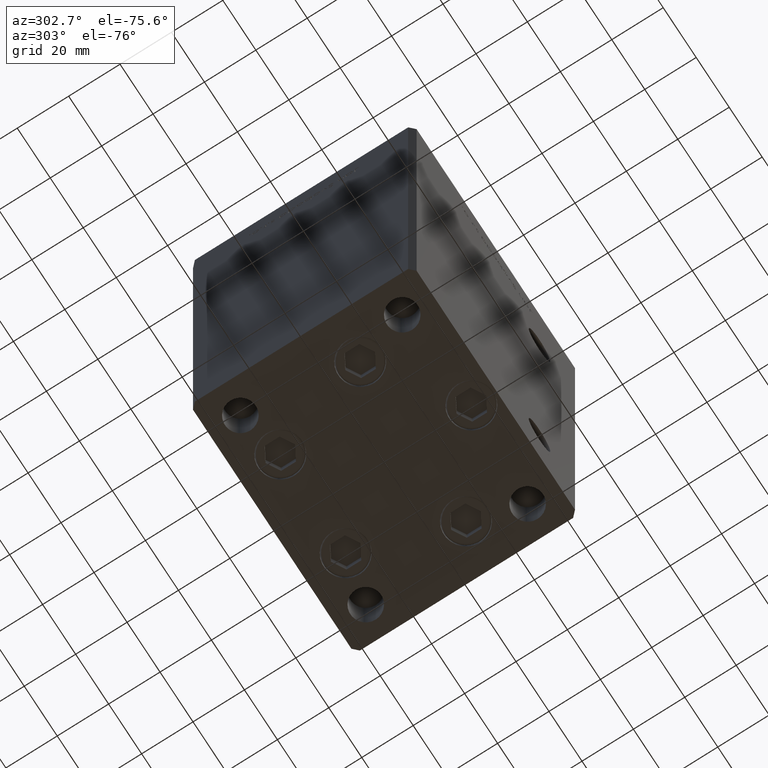
[diagram: clean part render]
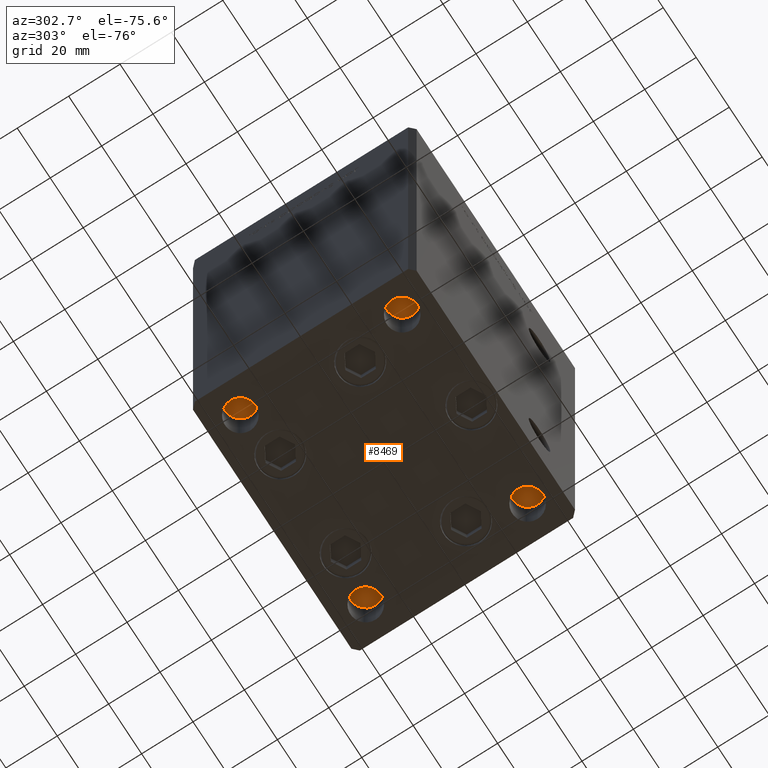
[diagram: same view with one face highlighted and labeled with its STEP entity id]
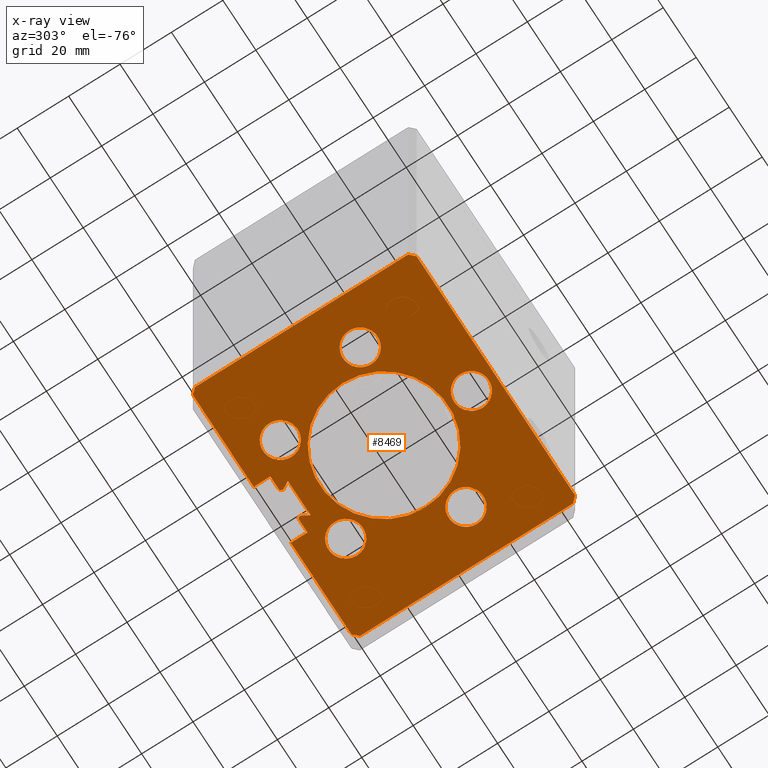
[diagram: x-ray of the same camera — body ghosted, the highlighted face saturated]
A machine part, auxiliary view. The second image highlights one B-rep face of the part: STEP entity #8469.
The next image is the same camera in x-ray: the body ghosted, the highlighted face saturated — about 0% of this face is hidden behind the body in this view.
In plain terms, the highlighted planar face has unit normal (0, 0, -1).
Its self-contained STEP definition (entity closure, byte-faithful):
#275 = LINE ( 'NONE', #8955, #40800 ) ;
#490 = VERTEX_POINT ( 'NONE', #632 ) ;
#537 = DIRECTION ( 'NONE',  ( -1.000000000000000000, 0.000000000000000000, -0.000000000000000000 ) ) ;
#559 = CARTESIAN_POINT ( 'NONE',  ( -11.24999999999999822, 43.50000000000000000, 0.000000000000000000 ) ) ;
#612 = DIRECTION ( 'NONE',  ( -3.344045254895050973E-16, -1.000000000000000000, 0.000000000000000000 ) ) ;
#632 = CARTESIAN_POINT ( 'NONE',  ( -49.99999999999998579, -41.49999999999999289, 0.000000000000000000 ) ) ;
#883 = ORIENTED_EDGE ( 'NONE', *, *, #48804, .F. ) ;
#1217 = AXIS2_PLACEMENT_3D ( 'NONE', #48082, #3254, #11672 ) ;
#1326 = FACE_BOUND ( 'NONE', #14471, .T. ) ;
#1460 = CARTESIAN_POINT ( 'NONE',  ( 5.375042956467945388, 35.59999999999898534, 0.000000000000000000 ) ) ;
#1696 = AXIS2_PLACEMENT_3D ( 'NONE', #21092, #21617, #537 ) ;
#1720 = CARTESIAN_POINT ( 'NONE',  ( -6.183333333333997928, 36.06666666666598786, 0.000000000000000000 ) ) ;
#2004 = DIRECTION ( 'NONE',  ( -0.7071067811865487940, -0.7071067811865463515, 0.000000000000000000 ) ) ;
#2518 = CARTESIAN_POINT ( 'NONE',  ( 6.183333333333997928, 36.99999999999999289, 0.000000000000000000 ) ) ;
#2646 = CIRCLE ( 'NONE', #29547, 6.749999999999999112 ) ;
#2679 = VECTOR ( 'NONE', #24592, 1000.000000000000000 ) ;
#2705 = DIRECTION ( 'NONE',  ( -0.000000000000000000, -0.000000000000000000, -1.000000000000000000 ) ) ;
#3183 = VERTEX_POINT ( 'NONE', #50435 ) ;
#3254 = DIRECTION ( 'NONE',  ( 0.000000000000000000, 0.000000000000000000, -1.000000000000000000 ) ) ;
#3286 = DIRECTION ( 'NONE',  ( -1.000000000000000000, 0.000000000000000000, 0.000000000000000000 ) ) ;
#3294 = DIRECTION ( 'NONE',  ( -1.000000000000000000, 0.000000000000000000, 0.000000000000000000 ) ) ;
#3652 = AXIS2_PLACEMENT_3D ( 'NONE', #41524, #42040, #18287 ) ;
#3850 = CARTESIAN_POINT ( 'NONE',  ( 50.00000000000001421, 41.49999999999999289, 0.000000000000000000 ) ) ;
#3876 = ORIENTED_EDGE ( 'NONE', *, *, #43328, .F. ) ;
#4078 = EDGE_CURVE ( 'NONE', #10994, #51083, #26001, .T. ) ;
#4116 = EDGE_LOOP ( 'NONE', ( #5203, #8835 ) ) ;
#4276 = VECTOR ( 'NONE', #31490, 1000.000000000000000 ) ;
#4295 = DIRECTION ( 'NONE',  ( -0.7071067811865474617, -0.7071067811865474617, 0.000000000000000000 ) ) ;
#4494 = DIRECTION ( 'NONE',  ( 0.000000000000000000, 0.000000000000000000, -1.000000000000000000 ) ) ;
#4589 = AXIS2_PLACEMENT_3D ( 'NONE', #21091, #20824, #32702 ) ;
#5014 = FACE_BOUND ( 'NONE', #9566, .T. ) ;
#5138 = VERTEX_POINT ( 'NONE', #21946 ) ;
#5203 = ORIENTED_EDGE ( 'NONE', *, *, #33864, .F. ) ;
#5475 = ORIENTED_EDGE ( 'NONE', *, *, #37705, .T. ) ;
#5491 = DIRECTION ( 'NONE',  ( -1.000000000000000000, 0.000000000000000000, 0.000000000000000000 ) ) ;
#5527 = CARTESIAN_POINT ( 'NONE',  ( 25.30550741379015989, -11.33333333333332682, 0.000000000000000000 ) ) ;
#5901 = EDGE_CURVE ( 'NONE', #23056, #15321, #39862, .T. ) ;
#6034 = DIRECTION ( 'NONE',  ( -0.000000000000000000, -0.000000000000000000, -1.000000000000000000 ) ) ;
#6774 = ORIENTED_EDGE ( 'NONE', *, *, #4078, .T. ) ;
#7007 = ORIENTED_EDGE ( 'NONE', *, *, #5901, .T. ) ;
#7162 = DIRECTION ( 'NONE',  ( 1.000000000000000000, 0.000000000000000000, 0.000000000000000000 ) ) ;
#7474 = AXIS2_PLACEMENT_3D ( 'NONE', #1720, #17782, #49984 ) ;
#7528 = VERTEX_POINT ( 'NONE', #43525 ) ;
#7567 = DIRECTION ( 'NONE',  ( 3.344045254895050973E-16, -1.000000000000000000, 0.000000000000000000 ) ) ;
#7683 = VERTEX_POINT ( 'NONE', #21351 ) ;
#7712 = CIRCLE ( 'NONE', #28752, 25.00000000000000000 ) ;
#7803 = CARTESIAN_POINT ( 'NONE',  ( -6.876153656360465050, 32.99999999999986500, 0.000000000000000000 ) ) ;
#7989 = CARTESIAN_POINT ( 'NONE',  ( 49.99999999999998579, -41.49999999999999289, 0.000000000000000000 ) ) ;
#8068 = EDGE_CURVE ( 'NONE', #35827, #51162, #36724, .T. ) ;
#8469 = ADVANCED_FACE ( 'NONE', ( #32966, #1326, #33486, #49589, #5014, #8697, #29518 ), #16616, .T. ) ;
#8697 = FACE_OUTER_BOUND ( 'NONE', #29122, .T. ) ;
#8828 = EDGE_CURVE ( 'NONE', #7528, #35827, #14927, .T. ) ;
#8834 = AXIS2_PLACEMENT_3D ( 'NONE', #12400, #4494, #28484 ) ;
#8835 = ORIENTED_EDGE ( 'NONE', *, *, #17928, .F. ) ;
#8945 = CARTESIAN_POINT ( 'NONE',  ( -50.00000000000001421, 41.49999999999999289, 0.000000000000000000 ) ) ;
#8955 = CARTESIAN_POINT ( 'NONE',  ( 6.876153656360465050, 32.99999999999986500, 0.000000000000000000 ) ) ;
#9149 = DIRECTION ( 'NONE',  ( -1.000000000000000000, 0.000000000000000000, 0.000000000000000000 ) ) ;
#9566 = EDGE_LOOP ( 'NONE', ( #883, #40571 ) ) ;
#9664 = CARTESIAN_POINT ( 'NONE',  ( 19.82068048781373548, 27.62500000000000711, 0.000000000000000000 ) ) ;
#9693 = ORIENTED_EDGE ( 'NONE', *, *, #51969, .T. ) ;
#9727 = DIRECTION ( 'NONE',  ( 0.000000000000000000, 0.000000000000000000, -1.000000000000000000 ) ) ;
#9819 = VERTEX_POINT ( 'NONE', #21765 ) ;
#9994 = CIRCLE ( 'NONE', #25995, 6.749999999999999112 ) ;
#10415 = CARTESIAN_POINT ( 'NONE',  ( 19.82068048781373548, 27.62500000000000711, 0.000000000000000000 ) ) ;
#10704 = AXIS2_PLACEMENT_3D ( 'NONE', #26084, #9727, #37696 ) ;
#10994 = VERTEX_POINT ( 'NONE', #42486 ) ;
#11055 = AXIS2_PLACEMENT_3D ( 'NONE', #10415, #35724, #3286 ) ;
#11421 = DIRECTION ( 'NONE',  ( 1.000000000000000000, 0.000000000000000000, 0.000000000000000000 ) ) ;
#11546 = CARTESIAN_POINT ( 'NONE',  ( -25.00000000000000000, 0.000000000000000000, 0.000000000000000000 ) ) ;
#11672 = DIRECTION ( 'NONE',  ( -1.000000000000000000, 0.000000000000000000, 0.000000000000000000 ) ) ;
#12019 = DIRECTION ( 'NONE',  ( -0.4999999999999996114, -0.8660254037844388186, -0.000000000000000000 ) ) ;
#12400 = CARTESIAN_POINT ( 'NONE',  ( 32.05550741379015989, -11.33333333333332682, 0.000000000000000000 ) ) ;
#12419 = LINE ( 'NONE', #559, #43843 ) ;
#12460 = LINE ( 'NONE', #33748, #2679 ) ;
#12472 = VERTEX_POINT ( 'NONE', #42107 ) ;
#12578 = ORIENTED_EDGE ( 'NONE', *, *, #41085, .T. ) ;
#12741 = VECTOR ( 'NONE', #2004, 1000.000000000000000 ) ;
#13104 = DIRECTION ( 'NONE',  ( 0.000000000000000000, 0.000000000000000000, -1.000000000000000000 ) ) ;
#13175 = VERTEX_POINT ( 'NONE', #50161 ) ;
#13349 = VECTOR ( 'NONE', #25942, 1000.000000000000000 ) ;
#13423 = CIRCLE ( 'NONE', #42900, 0.9333333333340008142 ) ;
#13481 = EDGE_CURVE ( 'NONE', #26098, #10994, #19644, .T. ) ;
#13583 = VERTEX_POINT ( 'NONE', #37301 ) ;
#13678 = EDGE_CURVE ( 'NONE', #49149, #47572, #30611, .T. ) ;
#13853 = LINE ( 'NONE', #34423, #12741 ) ;
#14471 = EDGE_LOOP ( 'NONE', ( #34729, #44459 ) ) ;
#14542 = EDGE_CURVE ( 'NONE', #5138, #48732, #50846, .T. ) ;
#14927 = LINE ( 'NONE', #3850, #48579 ) ;
#15144 = CARTESIAN_POINT ( 'NONE',  ( -11.24999999999999822, 43.50000000000000000, 0.000000000000000000 ) ) ;
#15203 = CARTESIAN_POINT ( 'NONE',  ( -50.00000000000001421, 41.49999999999999289, 0.000000000000000000 ) ) ;
#15321 = VERTEX_POINT ( 'NONE', #52188 ) ;
#15486 = CARTESIAN_POINT ( 'NONE',  ( -47.99999999999998579, -43.50000000000000000, 0.000000000000000000 ) ) ;
#16216 = CARTESIAN_POINT ( 'NONE',  ( -48.00000000000000711, 43.50000000000000000, 0.000000000000000000 ) ) ;
#16335 = CARTESIAN_POINT ( 'NONE',  ( -13.07068048781374081, 27.62500000000000355, 0.000000000000000000 ) ) ;
#16616 = PLANE ( 'NONE',  #1696 ) ;
#16640 = DIRECTION ( 'NONE',  ( -1.000000000000000000, 0.000000000000000000, 0.000000000000000000 ) ) ;
#16855 = VECTOR ( 'NONE', #4295, 1000.000000000000114 ) ;
#16936 = EDGE_CURVE ( 'NONE', #38379, #13583, #36583, .T. ) ;
#17019 = CARTESIAN_POINT ( 'NONE',  ( -32.05550741379015989, -11.33333333333333570, 0.000000000000000000 ) ) ;
#17066 = DIRECTION ( 'NONE',  ( 1.000000000000000000, 0.000000000000000000, 0.000000000000000000 ) ) ;
#17416 = EDGE_CURVE ( 'NONE', #39919, #7683, #43321, .T. ) ;
#17450 = EDGE_CURVE ( 'NONE', #18822, #30955, #275, .T. ) ;
#17782 = DIRECTION ( 'NONE',  ( -0.000000000000000000, -0.000000000000000000, -1.000000000000000000 ) ) ;
#17794 = DIRECTION ( 'NONE',  ( 0.000000000000000000, 0.000000000000000000, -1.000000000000000000 ) ) ;
#17928 = EDGE_CURVE ( 'NONE', #31197, #46286, #48419, .T. ) ;
#17953 = AXIS2_PLACEMENT_3D ( 'NONE', #9664, #13104, #9149 ) ;
#18150 = CARTESIAN_POINT ( 'NONE',  ( 6.183333333333997928, 36.06666666666598786, 0.000000000000000000 ) ) ;
#18287 = DIRECTION ( 'NONE',  ( 1.000000000000000000, 0.000000000000000000, 0.000000000000000000 ) ) ;
#18317 = VERTEX_POINT ( 'NONE', #16216 ) ;
#18323 = VECTOR ( 'NONE', #39099, 1000.000000000000114 ) ;
#18822 = VERTEX_POINT ( 'NONE', #24717 ) ;
#19126 = VECTOR ( 'NONE', #7567, 1000.000000000000000 ) ;
#19335 = CARTESIAN_POINT ( 'NONE',  ( -47.99999999999998579, -43.50000000000000000, 0.000000000000000000 ) ) ;
#19467 = ORIENTED_EDGE ( 'NONE', *, *, #29684, .F. ) ;
#19558 = LINE ( 'NONE', #52014, #18323 ) ;
#19644 = LINE ( 'NONE', #35221, #50928 ) ;
#19857 = LINE ( 'NONE', #19335, #24577 ) ;
#20190 = VECTOR ( 'NONE', #39606, 1000.000000000000000 ) ;
#20440 = EDGE_CURVE ( 'NONE', #51083, #12472, #47652, .T. ) ;
#20569 = ORIENTED_EDGE ( 'NONE', *, *, #47776, .F. ) ;
#20683 = CARTESIAN_POINT ( 'NONE',  ( 48.00000000000000711, 43.50000000000000000, 0.000000000000000000 ) ) ;
#20707 = ORIENTED_EDGE ( 'NONE', *, *, #34571, .T. ) ;
#20824 = DIRECTION ( 'NONE',  ( 0.000000000000000000, 0.000000000000000000, -1.000000000000000000 ) ) ;
#21091 = CARTESIAN_POINT ( 'NONE',  ( 4.163799117101000559E-15, -34.00000000000000000, 0.000000000000000000 ) ) ;
#21092 = CARTESIAN_POINT ( 'NONE',  ( 0.000000000000000000, 0.000000000000000000, 0.000000000000000000 ) ) ;
#21265 = AXIS2_PLACEMENT_3D ( 'NONE', #17019, #17794, #37325 ) ;
#21351 = CARTESIAN_POINT ( 'NONE',  ( -6.749999999999994671, -34.00000000000000000, 0.000000000000000000 ) ) ;
#21617 = DIRECTION ( 'NONE',  ( 0.000000000000000000, 0.000000000000000000, -1.000000000000000000 ) ) ;
#21765 = CARTESIAN_POINT ( 'NONE',  ( -11.24999999999999822, 43.50000000000000000, 0.000000000000000000 ) ) ;
#21946 = CARTESIAN_POINT ( 'NONE',  ( 26.57068048781373193, 27.62500000000000711, 0.000000000000000000 ) ) ;
#21958 = LINE ( 'NONE', #49933, #36955 ) ;
#22025 = CARTESIAN_POINT ( 'NONE',  ( 6.750000000000003553, -34.00000000000000000, 0.000000000000000000 ) ) ;
#22252 = LINE ( 'NONE', #42809, #13349 ) ;
#22414 = ORIENTED_EDGE ( 'NONE', *, *, #17450, .T. ) ;
#22473 = DIRECTION ( 'NONE',  ( -0.000000000000000000, -1.000000000000000000, -0.000000000000000000 ) ) ;
#23056 = VERTEX_POINT ( 'NONE', #44552 ) ;
#23307 = ORIENTED_EDGE ( 'NONE', *, *, #46575, .T. ) ;
#23572 = ORIENTED_EDGE ( 'NONE', *, *, #8828, .T. ) ;
#23709 = CIRCLE ( 'NONE', #11055, 6.749999999999999112 ) ;
#23791 = CIRCLE ( 'NONE', #21265, 6.749999999999999112 ) ;
#24489 = CARTESIAN_POINT ( 'NONE',  ( 49.99999999999998579, -41.49999999999999289, 0.000000000000000000 ) ) ;
#24577 = VECTOR ( 'NONE', #11421, 1000.000000000000000 ) ;
#24592 = DIRECTION ( 'NONE',  ( 0.7071067811865487940, -0.7071067811865463515, 0.000000000000000000 ) ) ;
#24717 = CARTESIAN_POINT ( 'NONE',  ( 6.876153656360465050, 32.99999999999986500, 0.000000000000000000 ) ) ;
#25308 = EDGE_CURVE ( 'NONE', #490, #33560, #19558, .T. ) ;
#25527 = DIRECTION ( 'NONE',  ( 0.000000000000000000, 0.000000000000000000, -1.000000000000000000 ) ) ;
#25557 = EDGE_CURVE ( 'NONE', #29549, #490, #28376, .T. ) ;
#25885 = CIRCLE ( 'NONE', #10704, 6.749999999999999112 ) ;
#25942 = DIRECTION ( 'NONE',  ( 1.000000000000000000, -0.000000000000000000, -0.000000000000000000 ) ) ;
#25995 = AXIS2_PLACEMENT_3D ( 'NONE', #30478, #35217, #46585 ) ;
#26001 = CIRCLE ( 'NONE', #7474, 0.9333333333340008142 ) ;
#26084 = CARTESIAN_POINT ( 'NONE',  ( -19.82068048781374259, 27.62500000000000355, 0.000000000000000000 ) ) ;
#26098 = VERTEX_POINT ( 'NONE', #48584 ) ;
#26730 = ORIENTED_EDGE ( 'NONE', *, *, #20440, .T. ) ;
#27014 = LINE ( 'NONE', #2518, #4276 ) ;
#27973 = CARTESIAN_POINT ( 'NONE',  ( 11.24999999999999822, 36.99999999999999289, 0.000000000000000000 ) ) ;
#28376 = LINE ( 'NONE', #15203, #19126 ) ;
#28484 = DIRECTION ( 'NONE',  ( -1.000000000000000000, 0.000000000000000000, 0.000000000000000000 ) ) ;
#28752 = AXIS2_PLACEMENT_3D ( 'NONE', #48738, #29187, #17066 ) ;
#29006 = VERTEX_POINT ( 'NONE', #20683 ) ;
#29064 = EDGE_CURVE ( 'NONE', #30428, #18822, #22252, .T. ) ;
#29085 = AXIS2_PLACEMENT_3D ( 'NONE', #38055, #2705, #7162 ) ;
#29122 = EDGE_LOOP ( 'NONE', ( #20707, #38626, #6774, #26730, #29870, #47187, #22414, #5475, #12578, #7007, #3876, #9693, #23572, #42663, #20569, #48733, #32258, #46682, #40185 ) ) ;
#29187 = DIRECTION ( 'NONE',  ( -0.000000000000000000, 0.000000000000000000, 1.000000000000000000 ) ) ;
#29518 = FACE_BOUND ( 'NONE', #38317, .T. ) ;
#29547 = AXIS2_PLACEMENT_3D ( 'NONE', #37144, #25527, #5491 ) ;
#29549 = VERTEX_POINT ( 'NONE', #8945 ) ;
#29684 = EDGE_CURVE ( 'NONE', #3183, #33291, #25885, .T. ) ;
#29870 = ORIENTED_EDGE ( 'NONE', *, *, #48704, .T. ) ;
#30120 = CARTESIAN_POINT ( 'NONE',  ( 38.80550741379015989, -11.33333333333332682, 0.000000000000000000 ) ) ;
#30428 = VERTEX_POINT ( 'NONE', #39783 ) ;
#30478 = CARTESIAN_POINT ( 'NONE',  ( 32.05550741379015989, -11.33333333333332682, 0.000000000000000000 ) ) ;
#30611 = CIRCLE ( 'NONE', #3652, 25.00000000000000000 ) ;
#30955 = VERTEX_POINT ( 'NONE', #1460 ) ;
#31197 = VERTEX_POINT ( 'NONE', #30120 ) ;
#31324 = ORIENTED_EDGE ( 'NONE', *, *, #17416, .F. ) ;
#31490 = DIRECTION ( 'NONE',  ( 1.000000000000000000, 0.000000000000000000, 0.000000000000000000 ) ) ;
#31514 = DIRECTION ( 'NONE',  ( 1.000000000000000000, -0.000000000000000000, -0.000000000000000000 ) ) ;
#31855 = ORIENTED_EDGE ( 'NONE', *, *, #44757, .F. ) ;
#32258 = ORIENTED_EDGE ( 'NONE', *, *, #25557, .F. ) ;
#32702 = DIRECTION ( 'NONE',  ( -1.000000000000000000, 0.000000000000000000, 0.000000000000000000 ) ) ;
#32966 = FACE_BOUND ( 'NONE', #45185, .T. ) ;
#33291 = VERTEX_POINT ( 'NONE', #16335 ) ;
#33486 = FACE_BOUND ( 'NONE', #4116, .T. ) ;
#33560 = VERTEX_POINT ( 'NONE', #15486 ) ;
#33748 = CARTESIAN_POINT ( 'NONE',  ( 48.00000000000000711, 43.50000000000000000, 0.000000000000000000 ) ) ;
#33864 = EDGE_CURVE ( 'NONE', #46286, #31197, #9994, .T. ) ;
#34423 = CARTESIAN_POINT ( 'NONE',  ( -48.00000000000000711, 43.50000000000000000, 0.000000000000000000 ) ) ;
#34571 = EDGE_CURVE ( 'NONE', #9819, #26098, #21958, .T. ) ;
#34729 = ORIENTED_EDGE ( 'NONE', *, *, #49956, .F. ) ;
#35217 = DIRECTION ( 'NONE',  ( 0.000000000000000000, 0.000000000000000000, -1.000000000000000000 ) ) ;
#35221 = CARTESIAN_POINT ( 'NONE',  ( -6.183333333333997928, 36.99999999999999289, 0.000000000000000000 ) ) ;
#35546 = VECTOR ( 'NONE', #12019, 1000.000000000000114 ) ;
#35724 = DIRECTION ( 'NONE',  ( 0.000000000000000000, 0.000000000000000000, -1.000000000000000000 ) ) ;
#35827 = VERTEX_POINT ( 'NONE', #24489 ) ;
#36489 = CARTESIAN_POINT ( 'NONE',  ( 25.00000000000000000, 3.061616997868383043E-15, 0.000000000000000000 ) ) ;
#36548 = CARTESIAN_POINT ( 'NONE',  ( 13.07068048781373548, 27.62500000000000711, 0.000000000000000000 ) ) ;
#36583 = CIRCLE ( 'NONE', #1217, 6.749999999999999112 ) ;
#36724 = LINE ( 'NONE', #7989, #16855 ) ;
#36955 = VECTOR ( 'NONE', #22473, 1000.000000000000000 ) ;
#37144 = CARTESIAN_POINT ( 'NONE',  ( 4.163799117101000559E-15, -34.00000000000000000, 0.000000000000000000 ) ) ;
#37301 = CARTESIAN_POINT ( 'NONE',  ( -38.80550741379015989, -11.33333333333333570, 0.000000000000000000 ) ) ;
#37325 = DIRECTION ( 'NONE',  ( -1.000000000000000000, 0.000000000000000000, 0.000000000000000000 ) ) ;
#37696 = DIRECTION ( 'NONE',  ( -1.000000000000000000, 0.000000000000000000, 0.000000000000000000 ) ) ;
#37705 = EDGE_CURVE ( 'NONE', #30955, #13175, #13423, .T. ) ;
#38055 = CARTESIAN_POINT ( 'NONE',  ( -6.183333333333997928, 36.06666666666598786, 0.000000000000000000 ) ) ;
#38317 = EDGE_LOOP ( 'NONE', ( #23307, #49535 ) ) ;
#38379 = VERTEX_POINT ( 'NONE', #49051 ) ;
#38626 = ORIENTED_EDGE ( 'NONE', *, *, #13481, .T. ) ;
#39099 = DIRECTION ( 'NONE',  ( 0.7071067811865474617, -0.7071067811865474617, 0.000000000000000000 ) ) ;
#39550 = ORIENTED_EDGE ( 'NONE', *, *, #42918, .F. ) ;
#39606 = DIRECTION ( 'NONE',  ( 0.000000000000000000, 1.000000000000000000, 0.000000000000000000 ) ) ;
#39783 = CARTESIAN_POINT ( 'NONE',  ( -6.876153656360465050, 32.99999999999986500, 0.000000000000000000 ) ) ;
#39862 = LINE ( 'NONE', #27973, #20190 ) ;
#39919 = VERTEX_POINT ( 'NONE', #22025 ) ;
#40185 = ORIENTED_EDGE ( 'NONE', *, *, #40394, .F. ) ;
#40394 = EDGE_CURVE ( 'NONE', #9819, #18317, #12419, .T. ) ;
#40528 = CIRCLE ( 'NONE', #47264, 6.749999999999999112 ) ;
#40571 = ORIENTED_EDGE ( 'NONE', *, *, #16936, .F. ) ;
#40800 = VECTOR ( 'NONE', #49328, 1000.000000000000114 ) ;
#41021 = LINE ( 'NONE', #7803, #35546 ) ;
#41085 = EDGE_CURVE ( 'NONE', #13175, #23056, #27014, .T. ) ;
#41524 = CARTESIAN_POINT ( 'NONE',  ( 0.000000000000000000, 0.000000000000000000, 0.000000000000000000 ) ) ;
#42040 = DIRECTION ( 'NONE',  ( -0.000000000000000000, 0.000000000000000000, 1.000000000000000000 ) ) ;
#42107 = CARTESIAN_POINT ( 'NONE',  ( -5.375042956467945388, 35.59999999999898534, 0.000000000000000000 ) ) ;
#42212 = EDGE_CURVE ( 'NONE', #18317, #29549, #13853, .T. ) ;
#42414 = DIRECTION ( 'NONE',  ( -1.000000000000000000, 0.000000000000000000, 0.000000000000000000 ) ) ;
#42486 = CARTESIAN_POINT ( 'NONE',  ( -6.183333333333997928, 36.99999999999999289, 0.000000000000000000 ) ) ;
#42663 = ORIENTED_EDGE ( 'NONE', *, *, #8068, .T. ) ;
#42809 = CARTESIAN_POINT ( 'NONE',  ( 6.876153656360465050, 32.99999999999986500, 0.000000000000000000 ) ) ;
#42900 = AXIS2_PLACEMENT_3D ( 'NONE', #18150, #6034, #46897 ) ;
#42918 = EDGE_CURVE ( 'NONE', #33291, #3183, #40528, .T. ) ;
#43321 = CIRCLE ( 'NONE', #4589, 6.749999999999999112 ) ;
#43328 = EDGE_CURVE ( 'NONE', #29006, #15321, #51298, .T. ) ;
#43525 = CARTESIAN_POINT ( 'NONE',  ( 50.00000000000001421, 41.49999999999999289, 0.000000000000000000 ) ) ;
#43843 = VECTOR ( 'NONE', #16640, 1000.000000000000000 ) ;
#44051 = CARTESIAN_POINT ( 'NONE',  ( -5.249999999999996447, 36.06666666666598786, 0.000000000000000000 ) ) ;
#44459 = ORIENTED_EDGE ( 'NONE', *, *, #14542, .F. ) ;
#44552 = CARTESIAN_POINT ( 'NONE',  ( 11.24999999999999822, 36.99999999999999289, 0.000000000000000000 ) ) ;
#44757 = EDGE_CURVE ( 'NONE', #7683, #39919, #2646, .T. ) ;
#45185 = EDGE_LOOP ( 'NONE', ( #19467, #39550 ) ) ;
#45670 = VECTOR ( 'NONE', #3294, 1000.000000000000000 ) ;
#46286 = VERTEX_POINT ( 'NONE', #5527 ) ;
#46378 = DIRECTION ( 'NONE',  ( 0.000000000000000000, 0.000000000000000000, -1.000000000000000000 ) ) ;
#46575 = EDGE_CURVE ( 'NONE', #47572, #49149, #7712, .T. ) ;
#46585 = DIRECTION ( 'NONE',  ( -1.000000000000000000, 0.000000000000000000, 0.000000000000000000 ) ) ;
#46682 = ORIENTED_EDGE ( 'NONE', *, *, #42212, .F. ) ;
#46897 = DIRECTION ( 'NONE',  ( 1.000000000000000000, 0.000000000000000000, 0.000000000000000000 ) ) ;
#47187 = ORIENTED_EDGE ( 'NONE', *, *, #29064, .T. ) ;
#47264 = AXIS2_PLACEMENT_3D ( 'NONE', #50861, #46378, #42414 ) ;
#47350 = EDGE_LOOP ( 'NONE', ( #31855, #31324 ) ) ;
#47572 = VERTEX_POINT ( 'NONE', #11546 ) ;
#47652 = CIRCLE ( 'NONE', #29085, 0.9333333333340008142 ) ;
#47776 = EDGE_CURVE ( 'NONE', #33560, #51162, #19857, .T. ) ;
#48082 = CARTESIAN_POINT ( 'NONE',  ( -32.05550741379015989, -11.33333333333333570, 0.000000000000000000 ) ) ;
#48419 = CIRCLE ( 'NONE', #8834, 6.749999999999999112 ) ;
#48579 = VECTOR ( 'NONE', #612, 1000.000000000000000 ) ;
#48584 = CARTESIAN_POINT ( 'NONE',  ( -11.24999999999999822, 36.99999999999999289, 0.000000000000000000 ) ) ;
#48704 = EDGE_CURVE ( 'NONE', #12472, #30428, #41021, .T. ) ;
#48732 = VERTEX_POINT ( 'NONE', #36548 ) ;
#48733 = ORIENTED_EDGE ( 'NONE', *, *, #25308, .F. ) ;
#48738 = CARTESIAN_POINT ( 'NONE',  ( 0.000000000000000000, 0.000000000000000000, 0.000000000000000000 ) ) ;
#48804 = EDGE_CURVE ( 'NONE', #13583, #38379, #23791, .T. ) ;
#49051 = CARTESIAN_POINT ( 'NONE',  ( -25.30550741379015989, -11.33333333333333570, 0.000000000000000000 ) ) ;
#49149 = VERTEX_POINT ( 'NONE', #36489 ) ;
#49328 = DIRECTION ( 'NONE',  ( -0.4999999999999996114, 0.8660254037844388186, 0.000000000000000000 ) ) ;
#49535 = ORIENTED_EDGE ( 'NONE', *, *, #13678, .T. ) ;
#49589 = FACE_BOUND ( 'NONE', #47350, .T. ) ;
#49835 = CARTESIAN_POINT ( 'NONE',  ( 47.99999999999998579, -43.50000000000000000, 0.000000000000000000 ) ) ;
#49933 = CARTESIAN_POINT ( 'NONE',  ( -11.24999999999999822, 36.99999999999999289, 0.000000000000000000 ) ) ;
#49956 = EDGE_CURVE ( 'NONE', #48732, #5138, #23709, .T. ) ;
#49984 = DIRECTION ( 'NONE',  ( 1.000000000000000000, 0.000000000000000000, 0.000000000000000000 ) ) ;
#50161 = CARTESIAN_POINT ( 'NONE',  ( 6.183333333333997928, 36.99999999999999289, 0.000000000000000000 ) ) ;
#50435 = CARTESIAN_POINT ( 'NONE',  ( -26.57068048781373903, 27.62500000000000355, 0.000000000000000000 ) ) ;
#50846 = CIRCLE ( 'NONE', #17953, 6.749999999999999112 ) ;
#50861 = CARTESIAN_POINT ( 'NONE',  ( -19.82068048781374259, 27.62500000000000355, 0.000000000000000000 ) ) ;
#50928 = VECTOR ( 'NONE', #31514, 1000.000000000000000 ) ;
#51083 = VERTEX_POINT ( 'NONE', #44051 ) ;
#51162 = VERTEX_POINT ( 'NONE', #49835 ) ;
#51298 = LINE ( 'NONE', #15144, #45670 ) ;
#51969 = EDGE_CURVE ( 'NONE', #29006, #7528, #12460, .T. ) ;
#52014 = CARTESIAN_POINT ( 'NONE',  ( -49.99999999999998579, -41.49999999999999289, 0.000000000000000000 ) ) ;
#52188 = CARTESIAN_POINT ( 'NONE',  ( 11.24999999999999822, 43.50000000000000000, 0.000000000000000000 ) ) ;